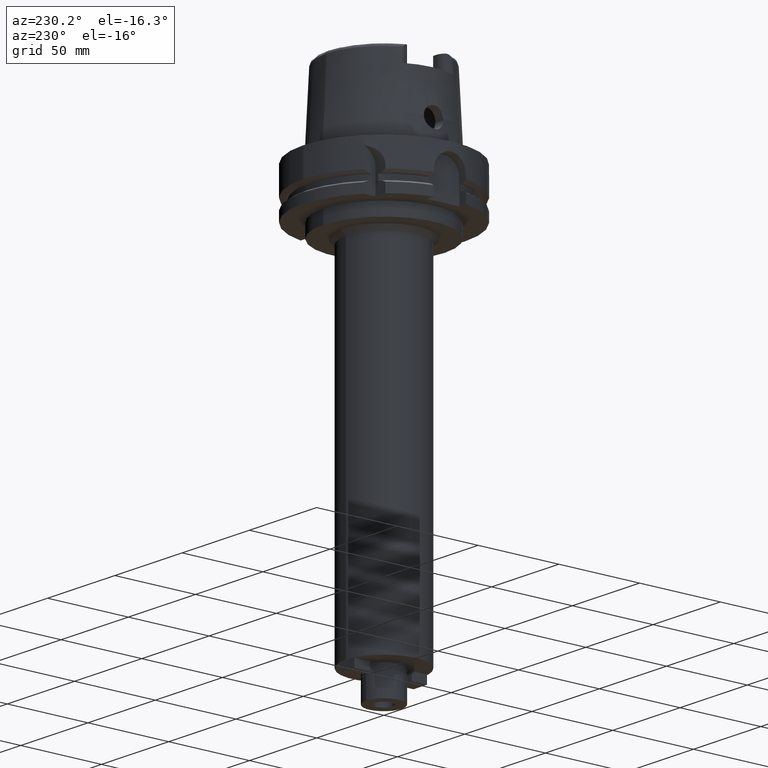
[diagram: clean part render]
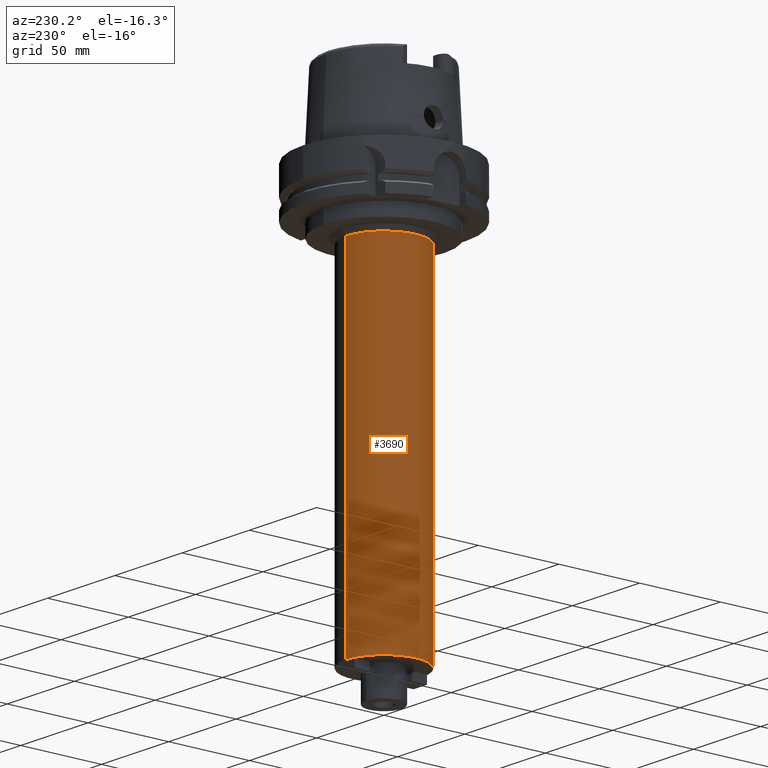
[diagram: same view with one face highlighted and labeled with its STEP entity id]
A machine part, auxiliary view. The second image highlights one B-rep face of the part: STEP entity #3690.
In plain terms, the highlighted cylindrical surface (partial cylindrical patch) has radius 23.5 mm, axis along (0, 0, 1).
Its self-contained STEP definition (entity closure, byte-faithful):
#1133=CARTESIAN_POINT('',(0.E0,0.E0,-2.5E2));
#1134=DIRECTION('',(0.E0,0.E0,1.E0));
#1135=DIRECTION('',(0.E0,1.E0,0.E0));
#1136=AXIS2_PLACEMENT_3D('',#1133,#1134,#1135);
#1185=DIRECTION('',(0.E0,0.E0,-1.E0));
#1186=VECTOR('',#1185,2.1E2);
#1187=CARTESIAN_POINT('',(0.E0,2.35E1,-4.E1));
#1188=LINE('',#1187,#1186);
#1192=DIRECTION('',(0.E0,0.E0,-1.E0));
#1193=VECTOR('',#1192,2.1E2);
#1194=CARTESIAN_POINT('',(0.E0,-2.35E1,-4.E1));
#1195=LINE('',#1194,#1193);
#1206=CARTESIAN_POINT('',(0.E0,0.E0,-4.E1));
#1207=DIRECTION('',(0.E0,0.E0,-1.E0));
#1208=DIRECTION('',(0.E0,-1.E0,0.E0));
#1209=AXIS2_PLACEMENT_3D('',#1206,#1207,#1208);
#2604=CARTESIAN_POINT('',(0.E0,-2.35E1,-2.5E2));
#2605=CARTESIAN_POINT('',(0.E0,2.35E1,-2.5E2));
#2606=VERTEX_POINT('',#2604);
#2607=VERTEX_POINT('',#2605);
#2624=CARTESIAN_POINT('',(0.E0,2.35E1,-4.E1));
#2625=VERTEX_POINT('',#2624);
#2626=CARTESIAN_POINT('',(0.E0,-2.35E1,-4.E1));
#2627=VERTEX_POINT('',#2626);
#3678=CARTESIAN_POINT('',(0.E0,0.E0,-2.839E2));
#3679=DIRECTION('',(0.E0,0.E0,1.E0));
#3680=DIRECTION('',(0.E0,1.E0,0.E0));
#3681=AXIS2_PLACEMENT_3D('',#3678,#3679,#3680);
#3682=CYLINDRICAL_SURFACE('',#3681,2.35E1);
#3683=ORIENTED_EDGE('',*,*,#3668,.F.);
#3685=ORIENTED_EDGE('',*,*,#3684,.F.);
#3686=ORIENTED_EDGE('',*,*,#3671,.T.);
#3687=ORIENTED_EDGE('',*,*,#3634,.F.);
#3688=EDGE_LOOP('',(#3683,#3685,#3686,#3687));
#3689=FACE_OUTER_BOUND('',#3688,.F.);
#1137=CIRCLE('',#1136,2.35E1);
#1210=CIRCLE('',#1209,2.35E1);
#3634=EDGE_CURVE('',#2607,#2606,#1137,.T.);
#3668=EDGE_CURVE('',#2625,#2607,#1188,.T.);
#3671=EDGE_CURVE('',#2627,#2606,#1195,.T.);
#3684=EDGE_CURVE('',#2627,#2625,#1210,.T.);
#3690=ADVANCED_FACE('',(#3689),#3682,.T.);